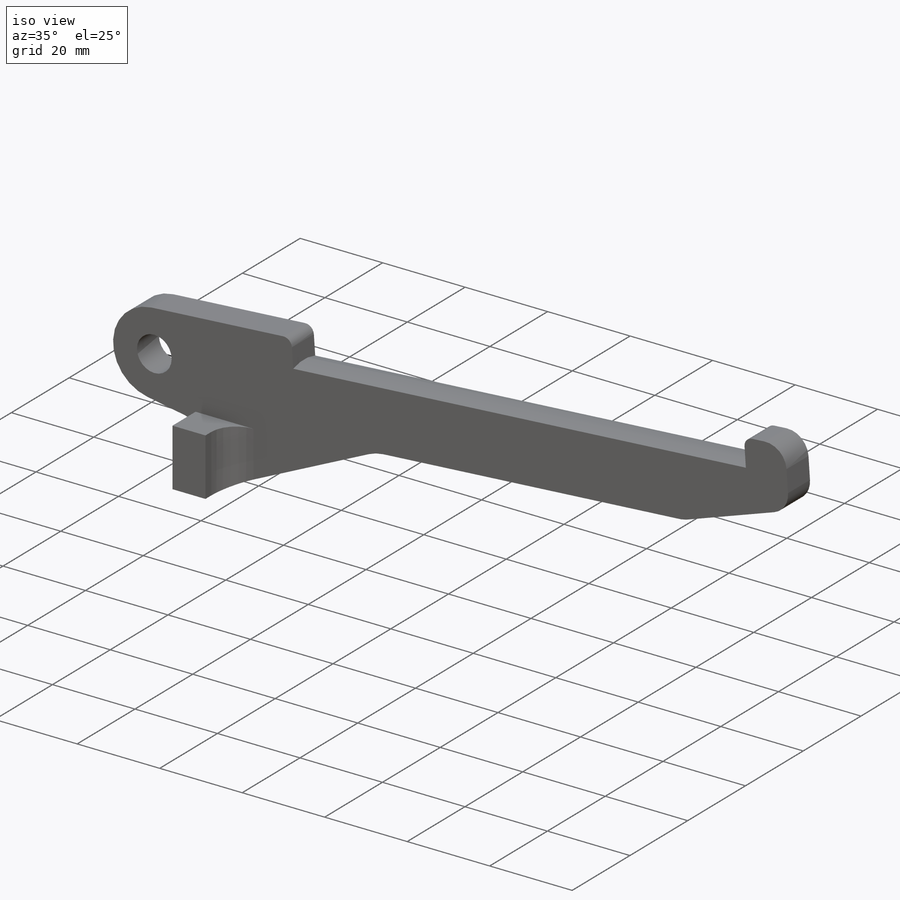
[diagram: iso view]
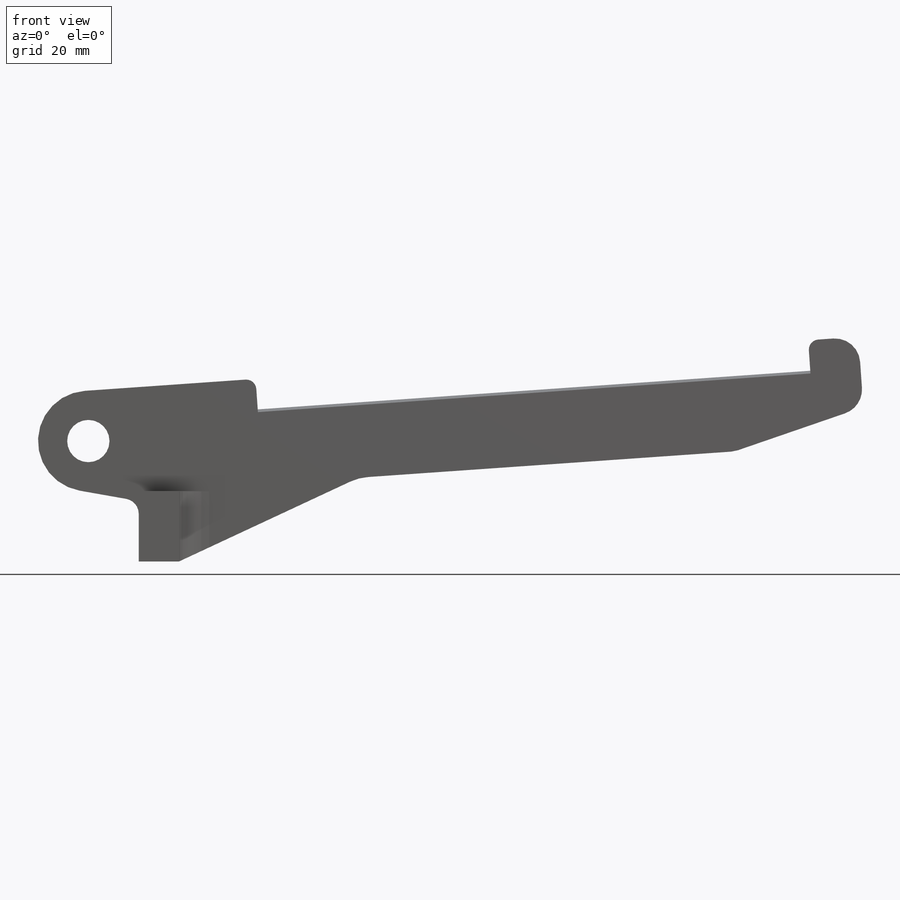
[diagram: front view]
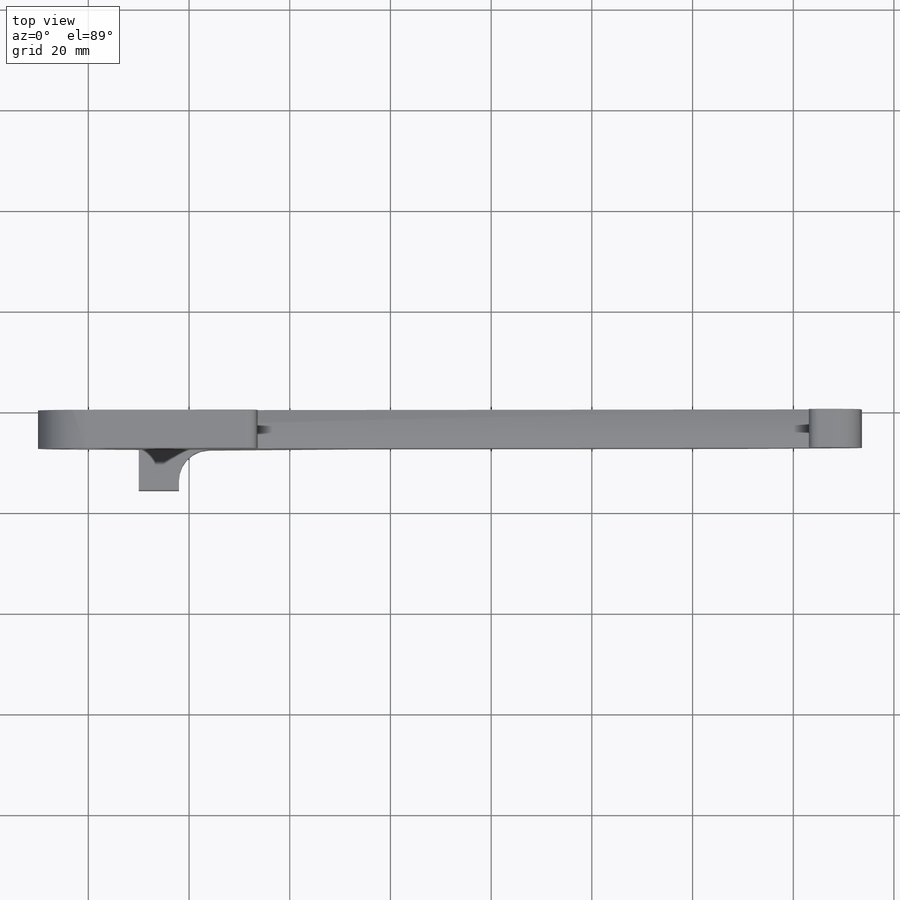
[diagram: top view]
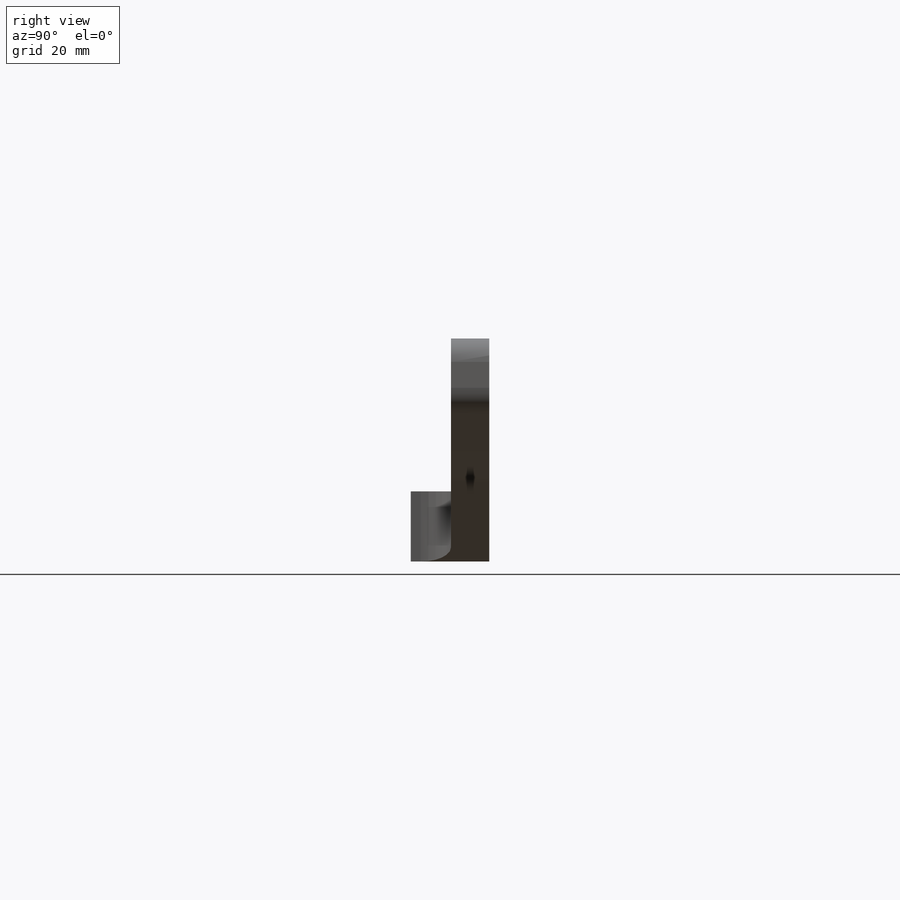
[diagram: right view]
SOLIDWORKS PART (.sldprt)
format: sldprt  version: not decoded by parser v0  size: 214,528 bytes
history: native  units: mm
features: sketch x3, extrude x2, fillet x2, material x1, cut_extrude x1 (+11 scaffold rows collapsed)
feature tree (20):
  scaffold x11  (default folders/planes/origin — collapsed)
  material  "Material <not specified>"
  sketch  "Sketch1"  dims[c1.D1=8.4mm c1.D3=20.0mm c1.D17=10.0mm c1.D18=5.0mm c1.D19=3.0mm c1.D20=10.0mm c1.D21=2.0mm c1.D13=5.0mm c2.D21=5.0mm c2.D2=10.0mm c2.D4=~16.655795mm c3.D4=10.0deg c3.D5=8.0mm c3.D6=12.0mm c3.D7=58.0mm c3.D8=58.0mm c3.D9=25.0mm c3.D10=10.0mm c3.D11=5.0mm c3.D12=5.0mm c3.D13=15.0mm c3.D14=~15.356272mm c4.D14=25.0deg c4.D15=6.0mm c4.D16=3.0mm c4.D22=20.0mm c4.D7=12.0mm c4.D4=~9.400237mm c5.D4=280.0deg c5.D7=~22.940902mm c6.D7=86.0deg c6.D8=34.0mm c6.D9=6.0mm c6.D10=110.0mm c6.D11=10.0mm c6.D12=15.0mm c6.D16=115.0mm c6.D17=8.0mm c6.D18=~25.260067mm c7.D18=15.0deg]
  extrude  "Boss-Extrude1"  Depth=7.6mm
  sketch  "Sketch2"  dims[D1=10.0mm]
  extrude  "Boss-Extrude2"  Depth=8mm
  fillet  "Fillet1"  Radius=6mm
  sketch  "Sketch6"  dims[D1=12.0mm]
  cut_extrude  "Cut-Extrude2"  [1 undecoded]
  fillet  "Fillet2"  Radius=2mm
decode coverage: 7 of 8 modeling features carry decoded parameters
note: ~ marks probable driven/reference dimensions
note: 1 parameter value undecoded
note: suppression state not decoded; provenance and decode notes live in map.json
